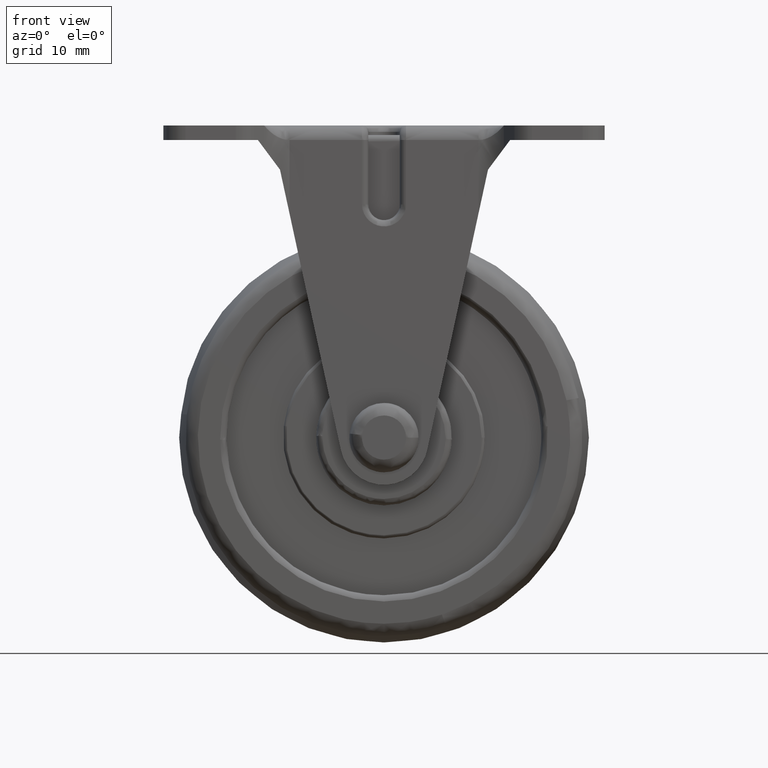
[diagram: clean part render]
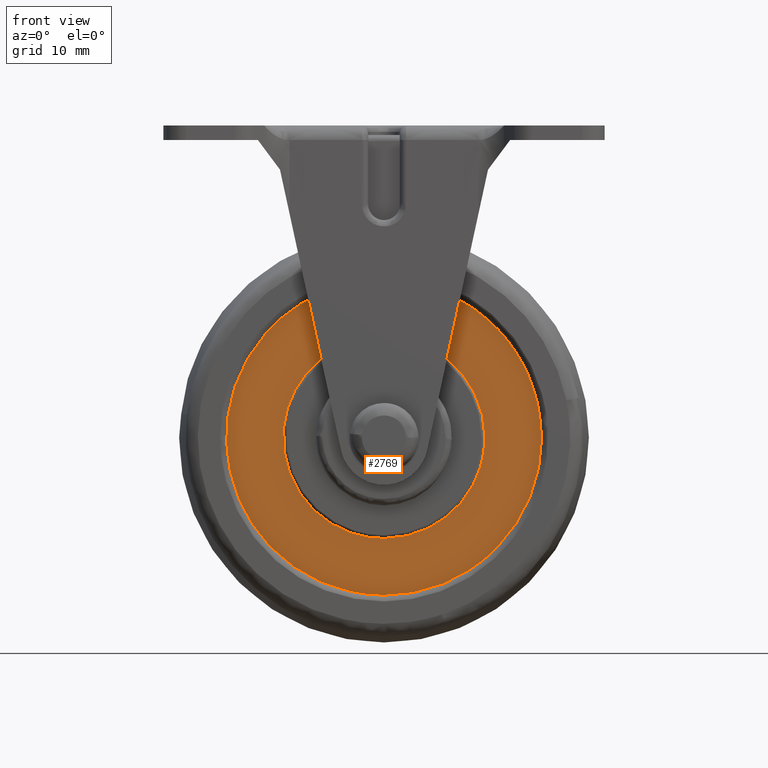
[diagram: same view with one face highlighted and labeled with its STEP entity id]
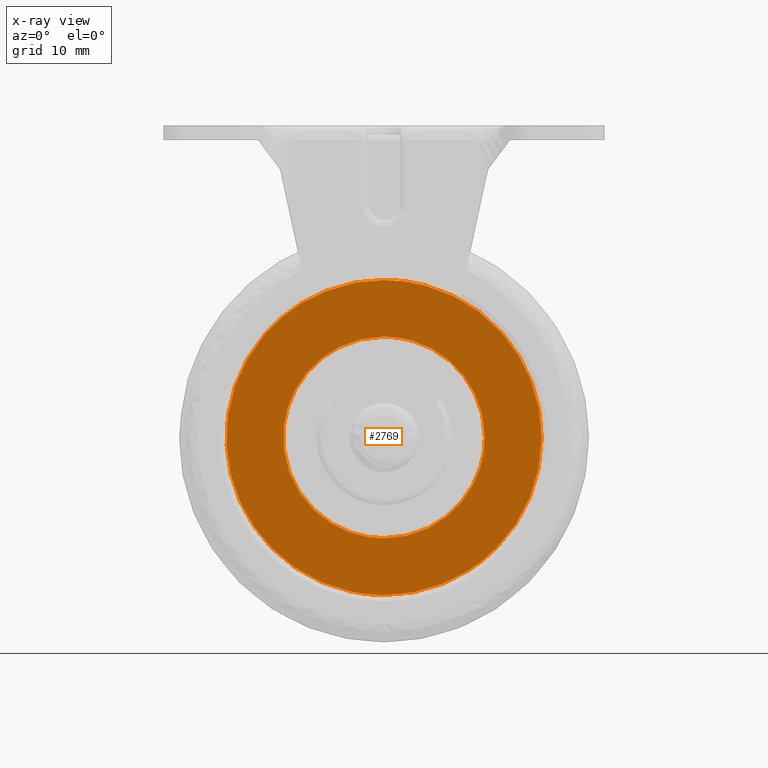
[diagram: x-ray of the same camera — body ghosted, the highlighted face saturated]
A machine part, front view. The second image highlights one B-rep face of the part: STEP entity #2769.
The next image is the same camera in x-ray: the body ghosted, the highlighted face saturated — about 0% of this face is hidden behind the body in this view.
In plain terms, the highlighted face is a freeform B-spline surface patch.
Its self-contained STEP definition (entity closure, byte-faithful):
#327=CARTESIAN_POINT('',(17.831261499784361,-9.0,-17.522731331796070));
#328=VERTEX_POINT('',#327);
#334=CARTESIAN_POINT('',(0.0,-9.0,-25.0));
#335=VERTEX_POINT('',#334);
#336=CARTESIAN_POINT('',(0.0,-9.0,-25.0));
#337=CARTESIAN_POINT('',(10.483370498470114,-9.0,-25.0));
#338=CARTESIAN_POINT('',(17.831261499784365,-9.0,-17.522731331796077));
#346=(BOUNDED_CURVE()B_SPLINE_CURVE(2,(#336,#337,#338),.UNSPECIFIED.,.F.,.U.)B_SPLINE_CURVE_WITH_KNOTS((3,3),(0.0,0.126316762257137),.UNSPECIFIED.)CURVE()GEOMETRIC_REPRESENTATION_ITEM()RATIONAL_B_SPLINE_CURVE((1.0,0.852010707649654,0.853569641366673))REPRESENTATION_ITEM(''));
#347=EDGE_CURVE('',#335,#328,#346,.T.);
#349=CARTESIAN_POINT('',(-18.804241438703709,-9.000000000000002,16.474237582204911));
#350=VERTEX_POINT('',#349);
#351=CARTESIAN_POINT('',(-18.804241438703709,-9.000000000000002,16.474237582204903));
#352=CARTESIAN_POINT('',(-24.999999999999996,-9.0,9.402193167331598));
#353=CARTESIAN_POINT('',(-25.0,-9.0,1.211545E-015));
#354=CARTESIAN_POINT('',(-25.000000000000004,-9.0,-25.000000000000004));
#355=CARTESIAN_POINT('',(0.0,-9.0,-25.0));
#363=(BOUNDED_CURVE()B_SPLINE_CURVE(2,(#351,#352,#353,#354,#355),.UNSPECIFIED.,.F.,.U.)B_SPLINE_CURVE_WITH_KNOTS((3,2,3),(0.634954733907261,0.750000000000000,1.0),.UNSPECIFIED.)CURVE()GEOMETRIC_REPRESENTATION_ITEM()RATIONAL_B_SPLINE_CURVE((0.854482182893851,0.865216086819390,1.0,0.707106781186547,1.0))REPRESENTATION_ITEM(''));
#364=EDGE_CURVE('',#350,#335,#363,.T.);
#412=CARTESIAN_POINT('',(0.0,-9.0,25.0));
#413=VERTEX_POINT('',#412);
#414=CARTESIAN_POINT('',(0.0,-9.0,25.0));
#415=CARTESIAN_POINT('',(-11.334892776167619,-9.0,25.000000000000007));
#416=CARTESIAN_POINT('',(-18.804241438703709,-9.000000000000002,16.474237582204903));
#424=(BOUNDED_CURVE()B_SPLINE_CURVE(2,(#414,#415,#416),.UNSPECIFIED.,.F.,.U.)B_SPLINE_CURVE_WITH_KNOTS((3,3),(0.500000000000000,0.634954733907261),.UNSPECIFIED.)CURVE()GEOMETRIC_REPRESENTATION_ITEM()RATIONAL_B_SPLINE_CURVE((1.0,0.841890694367157,0.854482182893851))REPRESENTATION_ITEM(''));
#425=EDGE_CURVE('',#413,#350,#424,.T.);
#427=CARTESIAN_POINT('',(17.831261499784365,-9.0,-17.522731331796077));
#428=CARTESIAN_POINT('',(24.999999999999989,-9.0,-10.227769584456317));
#429=CARTESIAN_POINT('',(25.0,-9.0,1.211545E-015));
#430=CARTESIAN_POINT('',(25.000000000000004,-9.0,25.000000000000004));
#431=CARTESIAN_POINT('',(0.0,-9.0,25.0));
#439=(BOUNDED_CURVE()B_SPLINE_CURVE(2,(#427,#428,#429,#430,#431),.UNSPECIFIED.,.F.,.U.)B_SPLINE_CURVE_WITH_KNOTS((3,2,3),(0.126316762257137,0.250000000000000,0.500000000000000),.UNSPECIFIED.)CURVE()GEOMETRIC_REPRESENTATION_ITEM()RATIONAL_B_SPLINE_CURVE((0.853569641366673,0.855096073536893,1.0,0.707106781186547,1.0))REPRESENTATION_ITEM(''));
#440=EDGE_CURVE('',#328,#413,#439,.T.);
#1665=CARTESIAN_POINT('',(16.0,-9.000000002339650,-7.108498E-015));
#1666=VERTEX_POINT('',#1665);
#1680=CARTESIAN_POINT('',(0.0,-9.0,16.0));
#1681=VERTEX_POINT('',#1680);
#1682=CARTESIAN_POINT('',(15.999999999999993,-9.000000002339649,-7.108498E-015));
#1683=CARTESIAN_POINT('',(16.000000000000014,-9.0,16.0));
#1684=CARTESIAN_POINT('',(0.0,-9.0,16.0));
#1692=(BOUNDED_CURVE()B_SPLINE_CURVE(2,(#1682,#1683,#1684),.UNSPECIFIED.,.F.,.U.)B_SPLINE_CURVE_WITH_KNOTS((3,3),(0.250000000000000,0.500000000000000),.UNSPECIFIED.)CURVE()GEOMETRIC_REPRESENTATION_ITEM()RATIONAL_B_SPLINE_CURVE((1.000000000000001,0.707106781186547,1.0))REPRESENTATION_ITEM(''));
#1693=EDGE_CURVE('',#1666,#1681,#1692,.T.);
#1695=CARTESIAN_POINT('',(-15.892986220557040,-9.000000002324438,1.847427669269921));
#1696=VERTEX_POINT('',#1695);
#1697=CARTESIAN_POINT('',(0.0,-9.0,16.0));
#1698=CARTESIAN_POINT('',(-14.247867213164747,-9.0,16.000000000000004));
#1699=CARTESIAN_POINT('',(-15.892986220557034,-9.000000002324438,1.847427669269920));
#1707=(BOUNDED_CURVE()B_SPLINE_CURVE(2,(#1697,#1698,#1699),.UNSPECIFIED.,.F.,.U.)B_SPLINE_CURVE_WITH_KNOTS((3,3),(0.500000000000000,0.729999999999218),.UNSPECIFIED.)CURVE()GEOMETRIC_REPRESENTATION_ITEM()RATIONAL_B_SPLINE_CURVE((1.0,0.730538238692541,0.956886118189120))REPRESENTATION_ITEM(''));
#1708=EDGE_CURVE('',#1681,#1696,#1707,.T.);
#1773=CARTESIAN_POINT('',(0.0,-9.0,-16.0));
#1774=VERTEX_POINT('',#1773);
#1775=CARTESIAN_POINT('',(-15.892986220557042,-9.000000002324438,1.847427669269921));
#1776=CARTESIAN_POINT('',(-15.999999999999998,-9.0,0.926813265603144));
#1777=CARTESIAN_POINT('',(-16.0,-9.0,1.211545E-015));
#1778=CARTESIAN_POINT('',(-15.999999999999998,-9.000000000000002,-15.999999999999998));
#1779=CARTESIAN_POINT('',(0.0,-9.0,-16.0));
#1787=(BOUNDED_CURVE()B_SPLINE_CURVE(2,(#1775,#1776,#1777,#1778,#1779),.UNSPECIFIED.,.F.,.U.)B_SPLINE_CURVE_WITH_KNOTS((3,2,3),(0.729999999999218,0.750000000000000,1.0),.UNSPECIFIED.)CURVE()GEOMETRIC_REPRESENTATION_ITEM()RATIONAL_B_SPLINE_CURVE((0.956886118189121,0.976568542494008,1.0,0.707106781186548,1.0))REPRESENTATION_ITEM(''));
#1788=EDGE_CURVE('',#1696,#1774,#1787,.T.);
#1790=CARTESIAN_POINT('',(0.0,-9.0,-16.0));
#1791=CARTESIAN_POINT('',(15.999999999999977,-9.0,-16.000000000000004));
#1792=CARTESIAN_POINT('',(16.0,-9.000000002339650,-7.108498E-015));
#1800=(BOUNDED_CURVE()B_SPLINE_CURVE(2,(#1790,#1791,#1792),.UNSPECIFIED.,.F.,.U.)B_SPLINE_CURVE_WITH_KNOTS((3,3),(0.0,0.250000000000000),.UNSPECIFIED.)CURVE()GEOMETRIC_REPRESENTATION_ITEM()RATIONAL_B_SPLINE_CURVE((1.0,0.707106781186548,0.999999999999999))REPRESENTATION_ITEM(''));
#1801=EDGE_CURVE('',#1774,#1666,#1800,.T.);
#2752=CARTESIAN_POINT('',(-27.483724865600418,-9.0,-27.497499903090301));
#2753=CARTESIAN_POINT('',(-27.483724865600418,-9.0,27.497501244194812));
#2754=CARTESIAN_POINT('',(27.496400091335119,-9.0,-27.497499903090301));
#2755=CARTESIAN_POINT('',(27.496400091335119,-9.0,27.497501244194812));
#2756=B_SPLINE_SURFACE_WITH_KNOTS('',1,1,((#2752,#2754),(#2753,#2755)),.UNSPECIFIED.,.F.,.F.,.U.,(2,2),(2,2),(0.0,54.995001147285109),(0.0,54.980124956935541),.UNSPECIFIED.);
#2757=ORIENTED_EDGE('',*,*,#347,.T.);
#2758=ORIENTED_EDGE('',*,*,#440,.T.);
#2759=ORIENTED_EDGE('',*,*,#425,.T.);
#2760=ORIENTED_EDGE('',*,*,#364,.T.);
#2761=EDGE_LOOP('',(#2757,#2758,#2759,#2760));
#2762=FACE_OUTER_BOUND('',#2761,.T.);
#2763=ORIENTED_EDGE('',*,*,#1801,.F.);
#2764=ORIENTED_EDGE('',*,*,#1788,.F.);
#2765=ORIENTED_EDGE('',*,*,#1708,.F.);
#2766=ORIENTED_EDGE('',*,*,#1693,.F.);
#2767=EDGE_LOOP('',(#2763,#2764,#2765,#2766));
#2768=FACE_BOUND('',#2767,.T.);
#2769=ADVANCED_FACE('',(#2762,#2768),#2756,.F.);